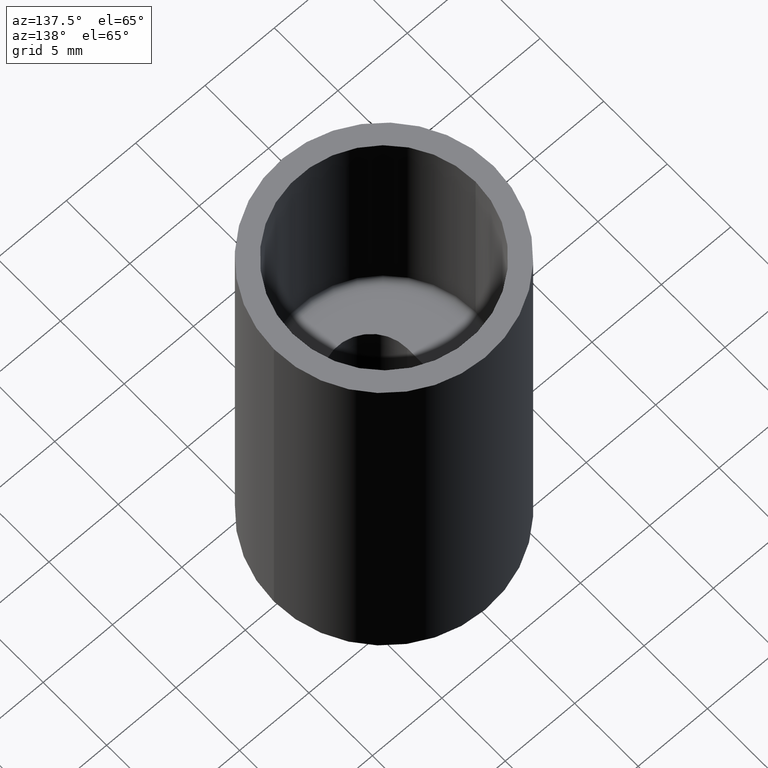
[diagram: clean part render]
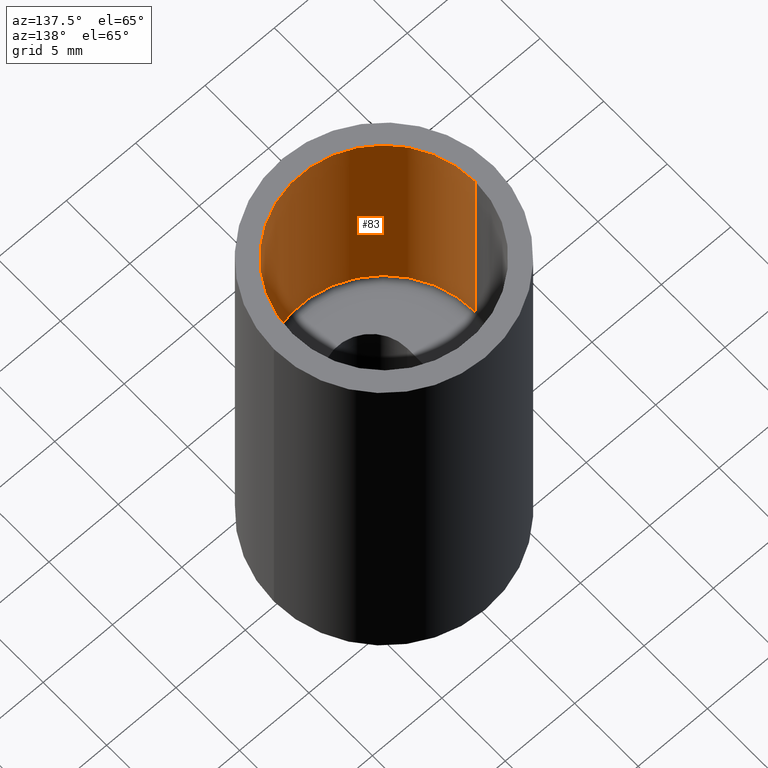
[diagram: same view with one face highlighted and labeled with its STEP entity id]
A machine part, auxiliary view. The second image highlights one B-rep face of the part: STEP entity #83.
In plain terms, the highlighted cylindrical surface (partial cylindrical patch) has radius 6.604 mm, axis along (-0, -0, 1).
Its self-contained STEP definition (entity closure, byte-faithful):
#16 = ORIENTED_EDGE ( 'NONE', *, *, #90, .T. ) ;
#55 = ORIENTED_EDGE ( 'NONE', *, *, #295, .T. ) ;
#80 = VERTEX_POINT ( 'NONE', #341 ) ;
#83 = ADVANCED_FACE ( 'NONE', ( #372 ), #180, .F. ) ;
#90 = EDGE_CURVE ( 'NONE', #95, #313, #415, .T. ) ;
#95 = VERTEX_POINT ( 'NONE', #282 ) ;
#105 = CIRCLE ( 'NONE', #154, 0.2600000000000000100 ) ;
#129 = CARTESIAN_POINT ( 'NONE',  ( 0.2600000000000000100, 0.0000000000000000000, -0.6600000000000000300 ) ) ;
#143 = AXIS2_PLACEMENT_3D ( 'NONE', #168, #332, #412 ) ;
#154 = AXIS2_PLACEMENT_3D ( 'NONE', #238, #392, #404 ) ;
#168 = CARTESIAN_POINT ( 'NONE',  ( 0.0000000000000000000, 0.0000000000000000000, -0.6600000000000000300 ) ) ;
#169 = DIRECTION ( 'NONE',  ( 1.000000000000000000, 0.0000000000000000000, 0.0000000000000000000 ) ) ;
#180 = CYLINDRICAL_SURFACE ( 'NONE', #143, 0.2600000000000000100 ) ;
#182 = ORIENTED_EDGE ( 'NONE', *, *, #368, .T. ) ;
#238 = CARTESIAN_POINT ( 'NONE',  ( 0.0000000000000000000, 0.0000000000000000000, -0.6450000000000001300 ) ) ;
#247 = LINE ( 'NONE', #129, #381 ) ;
#253 = VECTOR ( 'NONE', #374, 39.37007874015748100 ) ;
#273 = LINE ( 'NONE', #340, #253 ) ;
#276 = AXIS2_PLACEMENT_3D ( 'NONE', #364, #324, #169 ) ;
#282 = CARTESIAN_POINT ( 'NONE',  ( -0.2600000000000000100, 3.184081677783118700E-017, 0.0000000000000000000 ) ) ;
#295 = EDGE_CURVE ( 'NONE', #418, #80, #105, .T. ) ;
#313 = VERTEX_POINT ( 'NONE', #352 ) ;
#318 = ORIENTED_EDGE ( 'NONE', *, *, #390, .F. ) ;
#324 = DIRECTION ( 'NONE',  ( -0.0000000000000000000, 0.0000000000000000000, 1.000000000000000000 ) ) ;
#332 = DIRECTION ( 'NONE',  ( -0.0000000000000000000, -0.0000000000000000000, 1.000000000000000000 ) ) ;
#335 = CARTESIAN_POINT ( 'NONE',  ( 0.2600000000000000100, 0.0000000000000000000, -0.6450000000000001300 ) ) ;
#338 = DIRECTION ( 'NONE',  ( -0.0000000000000000000, -0.0000000000000000000, 1.000000000000000000 ) ) ;
#340 = CARTESIAN_POINT ( 'NONE',  ( -0.2600000000000000100, 3.184081677783118700E-017, -0.6600000000000000300 ) ) ;
#341 = CARTESIAN_POINT ( 'NONE',  ( -0.2600000000000000100, 3.184081677783118700E-017, -0.6450000000000001300 ) ) ;
#352 = CARTESIAN_POINT ( 'NONE',  ( 0.2600000000000000100, 0.0000000000000000000, 0.0000000000000000000 ) ) ;
#364 = CARTESIAN_POINT ( 'NONE',  ( 0.0000000000000000000, 0.0000000000000000000, 0.0000000000000000000 ) ) ;
#368 = EDGE_CURVE ( 'NONE', #80, #95, #273, .T. ) ;
#372 = FACE_OUTER_BOUND ( 'NONE', #405, .T. ) ;
#374 = DIRECTION ( 'NONE',  ( -0.0000000000000000000, -0.0000000000000000000, 1.000000000000000000 ) ) ;
#381 = VECTOR ( 'NONE', #338, 39.37007874015748100 ) ;
#390 = EDGE_CURVE ( 'NONE', #418, #313, #247, .T. ) ;
#392 = DIRECTION ( 'NONE',  ( 0.0000000000000000000, -0.0000000000000000000, -1.000000000000000000 ) ) ;
#404 = DIRECTION ( 'NONE',  ( 1.000000000000000000, 0.0000000000000000000, 0.0000000000000000000 ) ) ;
#405 = EDGE_LOOP ( 'NONE', ( #55, #182, #16, #318 ) ) ;
#412 = DIRECTION ( 'NONE',  ( 1.000000000000000000, 0.0000000000000000000, 0.0000000000000000000 ) ) ;
#415 = CIRCLE ( 'NONE', #276, 0.2600000000000000100 ) ;
#418 = VERTEX_POINT ( 'NONE', #335 ) ;